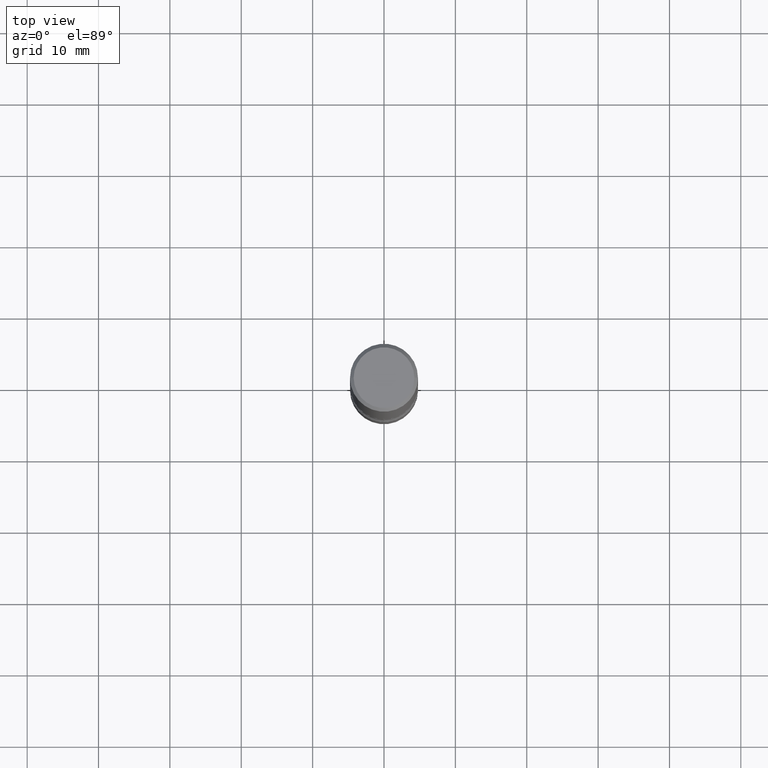
[diagram: clean part render]
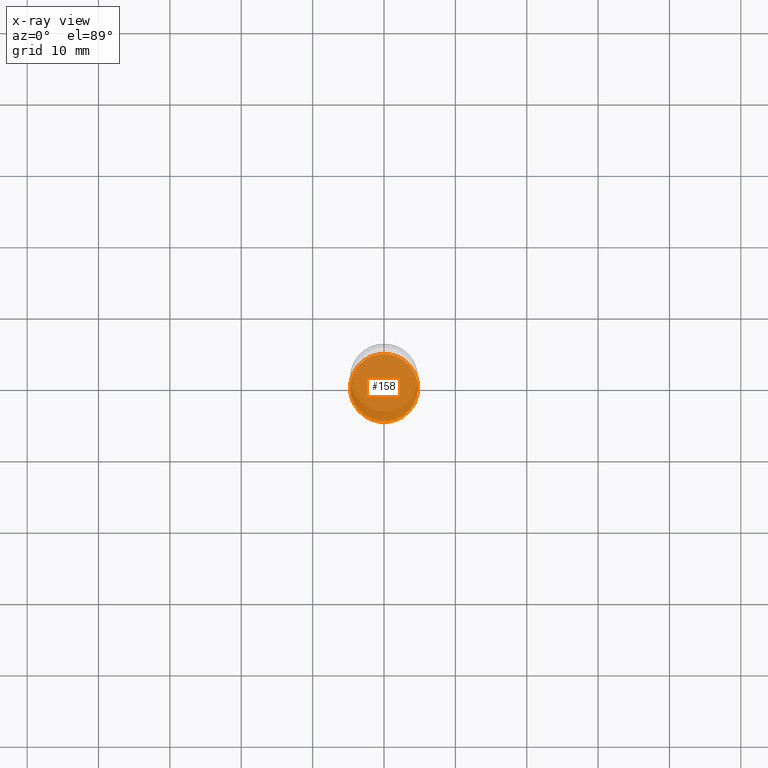
[diagram: x-ray — body ghosted, one internal face saturated and labeled with its STEP entity id]
A machine part, top view, then the same camera in x-ray: the body is ghosted and one INTERNAL B-rep face — a face not visible from any outside direction — is saturated and labeled: STEP entity #158.
In plain terms, the highlighted planar face has unit normal (0, -0, -1).
Its self-contained STEP definition (entity closure, byte-faithful):
#8 = DIRECTION ( 'NONE',  ( 2.438088387897960049E-29, -3.491481338843145188E-15, -1.000000000000000000 ) ) ;
#27 = DIRECTION ( 'NONE',  ( 1.000000000000000000, -6.982962677686269866E-15, 0.000000000000000000 ) ) ;
#49 = EDGE_CURVE ( 'NONE', #200, #108, #327, .T. ) ;
#81 = EDGE_LOOP ( 'NONE', ( #373, #455 ) ) ;
#108 = VERTEX_POINT ( 'NONE', #241 ) ;
#113 = DIRECTION ( 'NONE',  ( -2.445468806185136597E-29, 3.491481338843145583E-15, 1.000000000000000000 ) ) ;
#145 = CARTESIAN_POINT ( 'NONE',  ( 0.1875000000000000833, -1.265661985330640259E-14, -3.250000000000000444 ) ) ;
#151 = CARTESIAN_POINT ( 'NONE',  ( 7.947773620101696182E-29, -1.134731435124022600E-14, -3.250000000000000444 ) ) ;
#158 = ADVANCED_FACE ( 'NONE', ( #364 ), #485, .F. ) ;
#200 = VERTEX_POINT ( 'NONE', #145 ) ;
#235 = DIRECTION ( 'NONE',  ( 1.000000000000000000, -6.982962677686269866E-15, 0.000000000000000000 ) ) ;
#236 = CIRCLE ( 'NONE', #542, 0.1875000000000000833 ) ;
#241 = CARTESIAN_POINT ( 'NONE',  ( -0.1875000000000000833, -1.127198000367356963E-14, -3.250000000000000444 ) ) ;
#326 = DIRECTION ( 'NONE',  ( -1.000000000000000000, 6.982962677686265922E-15, -4.876176775795935793E-29 ) ) ;
#327 = CIRCLE ( 'NONE', #353, 0.1875000000000000833 ) ;
#329 = DIRECTION ( 'NONE',  ( -2.445468806185136597E-29, 3.491481338843145583E-15, 1.000000000000000000 ) ) ;
#344 = EDGE_CURVE ( 'NONE', #108, #200, #236, .T. ) ;
#353 = AXIS2_PLACEMENT_3D ( 'NONE', #444, #113, #27 ) ;
#364 = FACE_OUTER_BOUND ( 'NONE', #81, .T. ) ;
#373 = ORIENTED_EDGE ( 'NONE', *, *, #49, .T. ) ;
#444 = CARTESIAN_POINT ( 'NONE',  ( 7.947773620101696182E-29, -1.134731435124022600E-14, -3.250000000000000444 ) ) ;
#455 = ORIENTED_EDGE ( 'NONE', *, *, #344, .T. ) ;
#485 = PLANE ( 'NONE',  #530 ) ;
#525 = CARTESIAN_POINT ( 'NONE',  ( 7.947773620101696182E-29, -1.134731435124022600E-14, -3.250000000000000444 ) ) ;
#530 = AXIS2_PLACEMENT_3D ( 'NONE', #525, #8, #326 ) ;
#542 = AXIS2_PLACEMENT_3D ( 'NONE', #151, #329, #235 ) ;